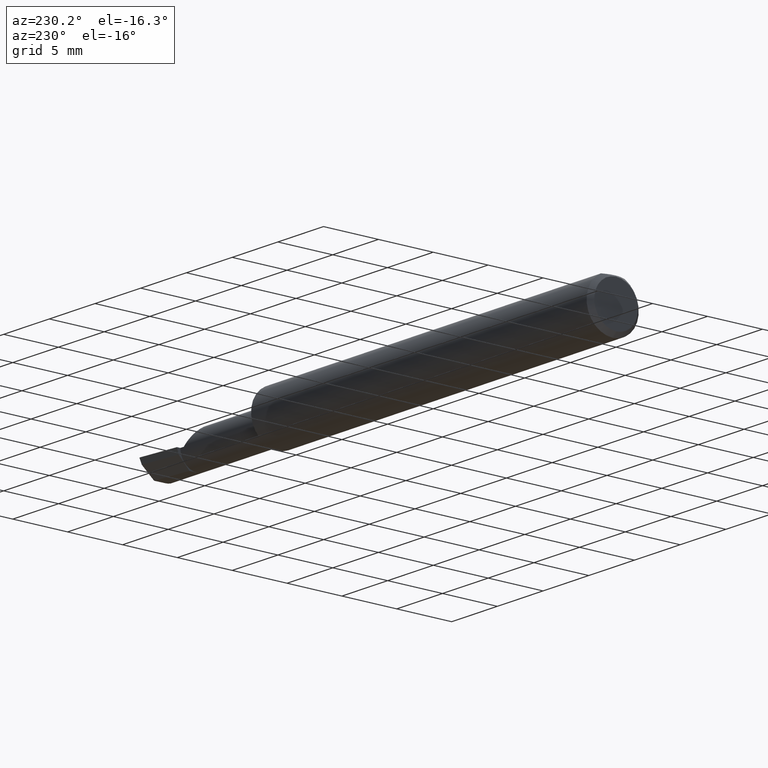
[diagram: clean part render]
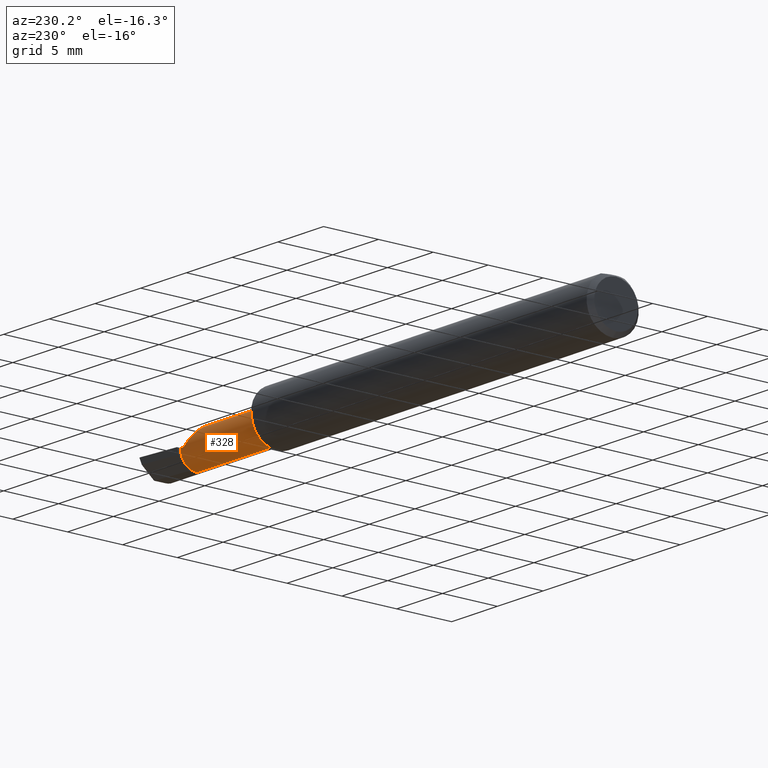
[diagram: same view with one face highlighted and labeled with its STEP entity id]
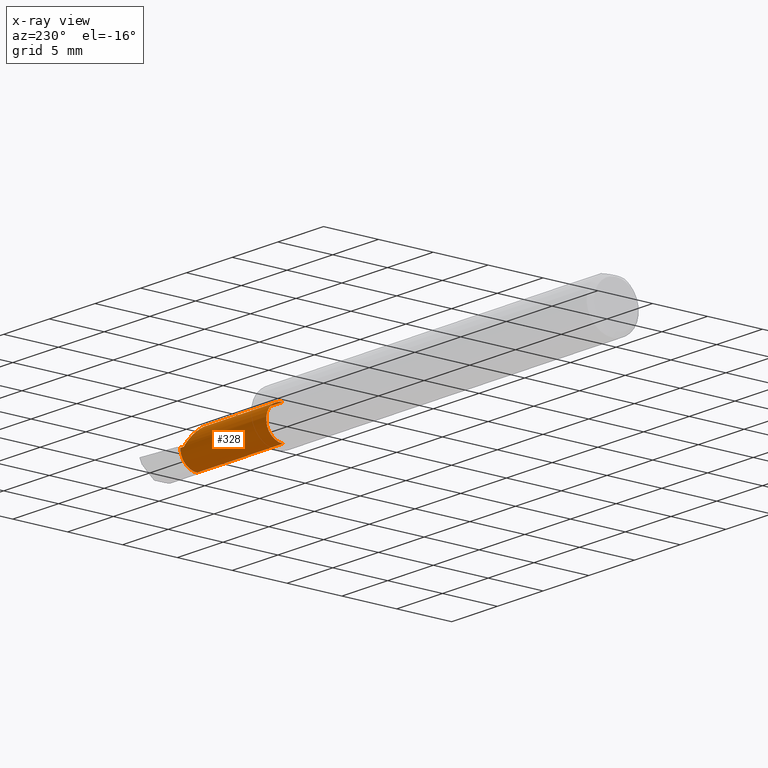
[diagram: x-ray of the same camera — body ghosted, the highlighted face saturated]
A machine part, auxiliary view. The second image highlights one B-rep face of the part: STEP entity #328.
The next image is the same camera in x-ray: the body ghosted, the highlighted face saturated — about 0% of this face is hidden behind the body in this view.
In plain terms, the highlighted cylindrical surface (edge-blend (fillet) strip) has radius 1.5215 mm, axis along (-1, -0, -0).
Its self-contained STEP definition (entity closure, byte-faithful):
#38 = CARTESIAN_POINT ( 'NONE',  ( 0.0000000000000000000, -0.04150000000000000216, 0.0000000000000000000 ) ) ;
#39 = DIRECTION ( 'NONE',  ( 0.0000000000000000000, 0.0000000000000000000, 1.000000000000000000 ) ) ;
#46 = VERTEX_POINT ( 'NONE', #633 ) ;
#50 = VERTEX_POINT ( 'NONE', #80 ) ;
#51 = ORIENTED_EDGE ( 'NONE', *, *, #351, .T. ) ;
#54 = CIRCLE ( 'NONE', #273, 0.05989999999999996022 ) ;
#58 = CYLINDRICAL_SURFACE ( 'NONE', #233, 0.05989999999999998798 ) ;
#63 = CARTESIAN_POINT ( 'NONE',  ( 1.484999999999999876, -0.04150000000000000216, 0.05989999999999996022 ) ) ;
#65 = DIRECTION ( 'NONE',  ( 0.0000000000000000000, 0.0000000000000000000, 1.000000000000000000 ) ) ;
#80 = CARTESIAN_POINT ( 'NONE',  ( 1.840000000000000080, 0.01839999999999989908, 1.959434878635762025E-17 ) ) ;
#91 = ORIENTED_EDGE ( 'NONE', *, *, #484, .T. ) ;
#92 = DIRECTION ( 'NONE',  ( 0.0000000000000000000, 0.0000000000000000000, 1.000000000000000000 ) ) ;
#96 = LINE ( 'NONE', #146, #453 ) ;
#106 = VECTOR ( 'NONE', #309, 39.37007874015748143 ) ;
#129 = CARTESIAN_POINT ( 'NONE',  ( 1.854999999999999982, -0.04150000000000000216, -0.05990000000000000185 ) ) ;
#135 = CARTESIAN_POINT ( 'NONE',  ( 1.854999999999999982, -0.04150000000000000216, 0.0000000000000000000 ) ) ;
#139 = EDGE_LOOP ( 'NONE', ( #51, #91, #290, #282, #303, #583 ) ) ;
#146 = CARTESIAN_POINT ( 'NONE',  ( 5.659797890829555466E-31, 0.01839999999999997540, 1.030335658007946046E-15 ) ) ;
#166 = CARTESIAN_POINT ( 'NONE',  ( 1.854999999999999982, 0.01839999999999999969, 1.030335658007946440E-15 ) ) ;
#189 = VECTOR ( 'NONE', #423, 39.37007874015748143 ) ;
#224 = CIRCLE ( 'NONE', #291, 0.05990000000000000185 ) ;
#233 = AXIS2_PLACEMENT_3D ( 'NONE', #38, #236, #92 ) ;
#236 = DIRECTION ( 'NONE',  ( -1.000000000000000000, -0.0000000000000000000, -0.0000000000000000000 ) ) ;
#247 = VERTEX_POINT ( 'NONE', #129 ) ;
#253 = DIRECTION ( 'NONE',  ( -1.000000000000000000, -0.0000000000000000000, -0.0000000000000000000 ) ) ;
#273 = AXIS2_PLACEMENT_3D ( 'NONE', #468, #253, #65 ) ;
#282 = ORIENTED_EDGE ( 'NONE', *, *, #435, .F. ) ;
#290 = ORIENTED_EDGE ( 'NONE', *, *, #621, .F. ) ;
#291 = AXIS2_PLACEMENT_3D ( 'NONE', #135, #337, #39 ) ;
#301 = CARTESIAN_POINT ( 'NONE',  ( 1.840000000000000080, 0.01839999999999989908, 1.959434878635762025E-17 ) ) ;
#303 = ORIENTED_EDGE ( 'NONE', *, *, #562, .T. ) ;
#309 = DIRECTION ( 'NONE',  ( -1.000000000000000000, -0.0000000000000000000, -0.0000000000000000000 ) ) ;
#319 = VERTEX_POINT ( 'NONE', #326 ) ;
#326 = CARTESIAN_POINT ( 'NONE',  ( 1.484999999999999876, -0.04149999999999999523, -0.05989999999999996022 ) ) ;
#328 = ADVANCED_FACE ( 'NONE', ( #550 ), #58, .T. ) ;
#337 = DIRECTION ( 'NONE',  ( -1.000000000000000000, -0.0000000000000000000, -0.0000000000000000000 ) ) ;
#351 = EDGE_CURVE ( 'NONE', #607, #247, #224, .T. ) ;
#364 = CARTESIAN_POINT ( 'NONE',  ( 0.0000000000000000000, -0.04149999999999999523, -0.05989999999999998798 ) ) ;
#395 = VERTEX_POINT ( 'NONE', #63 ) ;
#400 = CARTESIAN_POINT ( 'NONE',  ( 1.780099999999999349, -0.04150000000000000216, 0.05989999999999998798 ) ) ;
#423 = DIRECTION ( 'NONE',  ( -1.000000000000000000, -0.0000000000000000000, -0.0000000000000000000 ) ) ;
#435 = EDGE_CURVE ( 'NONE', #46, #395, #460, .T. ) ;
#452 = DIRECTION ( 'NONE',  ( 1.000000000000000000, 0.0000000000000000000, 0.0000000000000000000 ) ) ;
#453 = VECTOR ( 'NONE', #452, 39.37007874015748143 ) ;
#460 = LINE ( 'NONE', #516, #189 ) ;
#468 = CARTESIAN_POINT ( 'NONE',  ( 1.484999999999999876, -0.04150000000000000216, 0.0000000000000000000 ) ) ;
#484 = EDGE_CURVE ( 'NONE', #247, #319, #533, .T. ) ;
#508 =( BOUNDED_CURVE ( )  B_SPLINE_CURVE ( 3, ( #400, #512, #620, #301 ),
 .UNSPECIFIED., .F., .F. ) 
 B_SPLINE_CURVE_WITH_KNOTS ( ( 4, 4 ),
 ( 0.0000000000000000000, 1.570796326794896558 ),
 .UNSPECIFIED. ) 
 CURVE ( )  GEOMETRIC_REPRESENTATION_ITEM ( )  RATIONAL_B_SPLINE_CURVE ( ( 1.000000000000000000, 0.8047378541243649375, 0.8047378541243649375, 1.000000000000000000 ) ) 
 REPRESENTATION_ITEM ( '' )  );
#512 = CARTESIAN_POINT ( 'NONE',  ( 1.780099999999999349, -0.006411392386148404184, 0.05989999999999998104 ) ) ;
#516 = CARTESIAN_POINT ( 'NONE',  ( 0.0000000000000000000, -0.04150000000000000216, 0.05989999999999998798 ) ) ;
#520 = EDGE_CURVE ( 'NONE', #50, #607, #96, .T. ) ;
#533 = LINE ( 'NONE', #364, #106 ) ;
#550 = FACE_OUTER_BOUND ( 'NONE', #139, .T. ) ;
#562 = EDGE_CURVE ( 'NONE', #46, #50, #508, .T. ) ;
#583 = ORIENTED_EDGE ( 'NONE', *, *, #520, .T. ) ;
#607 = VERTEX_POINT ( 'NONE', #166 ) ;
#620 = CARTESIAN_POINT ( 'NONE',  ( 1.804911392386147506, 0.01839999999999998234, 0.03508860761385160232 ) ) ;
#621 = EDGE_CURVE ( 'NONE', #395, #319, #54, .T. ) ;
#633 = CARTESIAN_POINT ( 'NONE',  ( 1.780099999999999349, -0.04150000000000000216, 0.05989999999999998798 ) ) ;